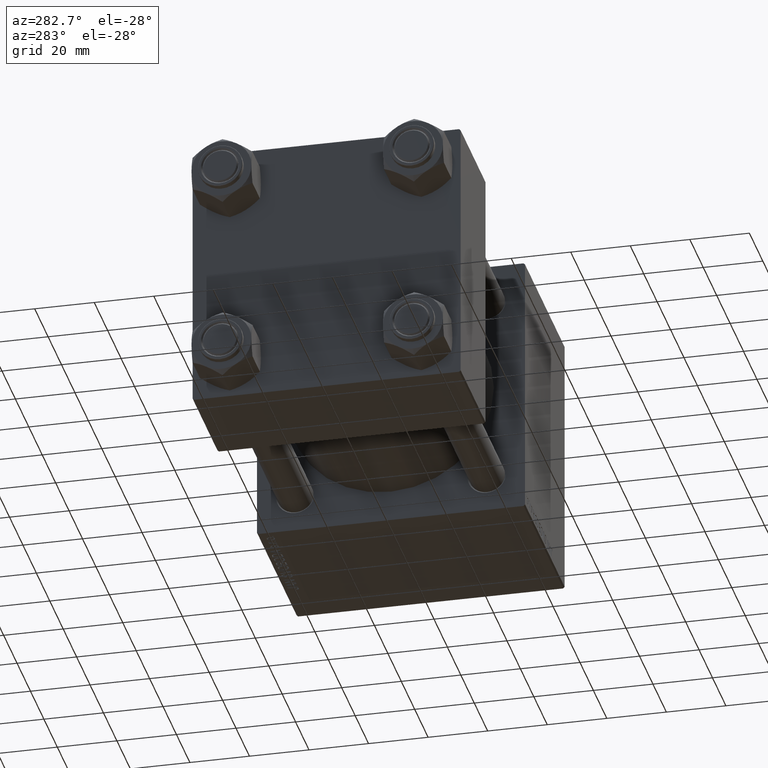
[diagram: clean part render]
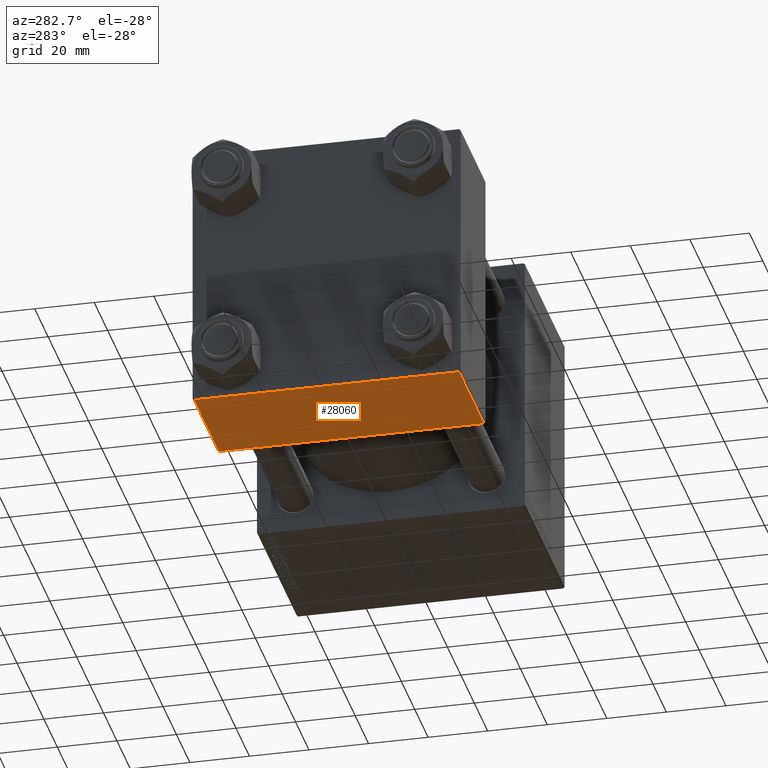
[diagram: same view with one face highlighted and labeled with its STEP entity id]
A machine part, auxiliary view. The second image highlights one B-rep face of the part: STEP entity #28060.
In plain terms, the highlighted planar face has unit normal (0, 0, -1).
Its self-contained STEP definition (entity closure, byte-faithful):
#546 = DIRECTION ( 'NONE',  ( 0.000000000000000000, 1.541976423090495880E-16, -1.000000000000000000 ) ) ;
#2328 = VERTEX_POINT ( 'NONE', #36581 ) ;
#2493 = LINE ( 'NONE', #22039, #2990 ) ;
#2990 = VECTOR ( 'NONE', #18733, 1000.000000000000000 ) ;
#11156 = ORIENTED_EDGE ( 'NONE', *, *, #43130, .T. ) ;
#12736 = CARTESIAN_POINT ( 'NONE',  ( 37.00000000000000000, 44.49999999999998579, -44.99999999999998579 ) ) ;
#13082 = ORIENTED_EDGE ( 'NONE', *, *, #39974, .T. ) ;
#15013 = ORIENTED_EDGE ( 'NONE', *, *, #24204, .T. ) ;
#15206 = LINE ( 'NONE', #26359, #32442 ) ;
#16054 = DIRECTION ( 'NONE',  ( 0.000000000000000000, 1.000000000000000000, 1.541976423090495880E-16 ) ) ;
#16902 = VECTOR ( 'NONE', #36337, 1000.000000000000000 ) ;
#18241 = CARTESIAN_POINT ( 'NONE',  ( 37.00000000000000000, 44.49999999999998579, -44.99999999999998579 ) ) ;
#18733 = DIRECTION ( 'NONE',  ( 0.000000000000000000, -1.000000000000000000, -1.541976423090495633E-16 ) ) ;
#20356 = EDGE_CURVE ( 'NONE', #42223, #2328, #15206, .T. ) ;
#22039 = CARTESIAN_POINT ( 'NONE',  ( 37.00000000000000000, 44.99999999999998579, -44.99999999999998579 ) ) ;
#22686 = CARTESIAN_POINT ( 'NONE',  ( 0.000000000000000000, 44.49999999999998579, -44.99999999999998579 ) ) ;
#24204 = EDGE_CURVE ( 'NONE', #40039, #2328, #33341, .T. ) ;
#26359 = CARTESIAN_POINT ( 'NONE',  ( 0.000000000000000000, 44.99999999999998579, -44.99999999999998579 ) ) ;
#27218 = PLANE ( 'NONE',  #36777 ) ;
#28060 = ADVANCED_FACE ( 'NONE', ( #31779 ), #27218, .T. ) ;
#28783 = CARTESIAN_POINT ( 'NONE',  ( 0.000000000000000000, -44.49999999999998579, -45.00000000000000000 ) ) ;
#31779 = FACE_OUTER_BOUND ( 'NONE', #36675, .T. ) ;
#32442 = VECTOR ( 'NONE', #38811, 1000.000000000000000 ) ;
#33341 = LINE ( 'NONE', #28783, #37461 ) ;
#35335 = CARTESIAN_POINT ( 'NONE',  ( 37.00000000000000000, 44.99999999999998579, -44.99999999999998579 ) ) ;
#36337 = DIRECTION ( 'NONE',  ( 1.000000000000000000, 0.000000000000000000, 0.000000000000000000 ) ) ;
#36581 = CARTESIAN_POINT ( 'NONE',  ( 0.000000000000000000, -44.49999999999995737, -45.00000000000000000 ) ) ;
#36675 = EDGE_LOOP ( 'NONE', ( #44766, #11156, #13082, #15013 ) ) ;
#36777 = AXIS2_PLACEMENT_3D ( 'NONE', #35335, #546, #16054 ) ;
#37461 = VECTOR ( 'NONE', #48090, 1000.000000000000000 ) ;
#38811 = DIRECTION ( 'NONE',  ( 0.000000000000000000, -1.000000000000000000, -1.541976423090495633E-16 ) ) ;
#39974 = EDGE_CURVE ( 'NONE', #47201, #40039, #2493, .T. ) ;
#40039 = VERTEX_POINT ( 'NONE', #47422 ) ;
#42223 = VERTEX_POINT ( 'NONE', #22686 ) ;
#43130 = EDGE_CURVE ( 'NONE', #42223, #47201, #48269, .T. ) ;
#44766 = ORIENTED_EDGE ( 'NONE', *, *, #20356, .F. ) ;
#47201 = VERTEX_POINT ( 'NONE', #18241 ) ;
#47422 = CARTESIAN_POINT ( 'NONE',  ( 37.00000000000000000, -44.49999999999995737, -45.00000000000000000 ) ) ;
#48090 = DIRECTION ( 'NONE',  ( -1.000000000000000000, 0.000000000000000000, 0.000000000000000000 ) ) ;
#48269 = LINE ( 'NONE', #12736, #16902 ) ;